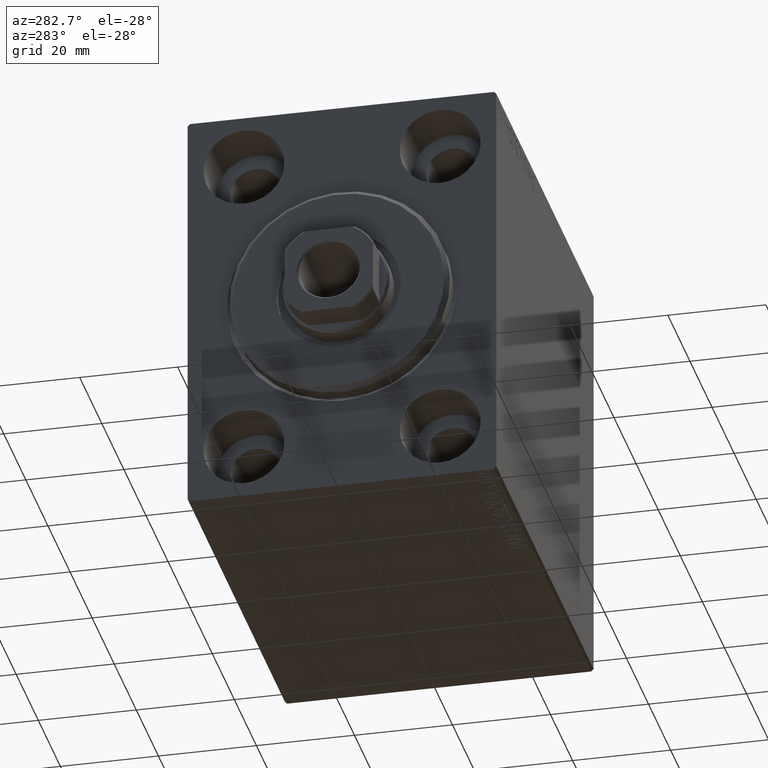
[diagram: clean part render]
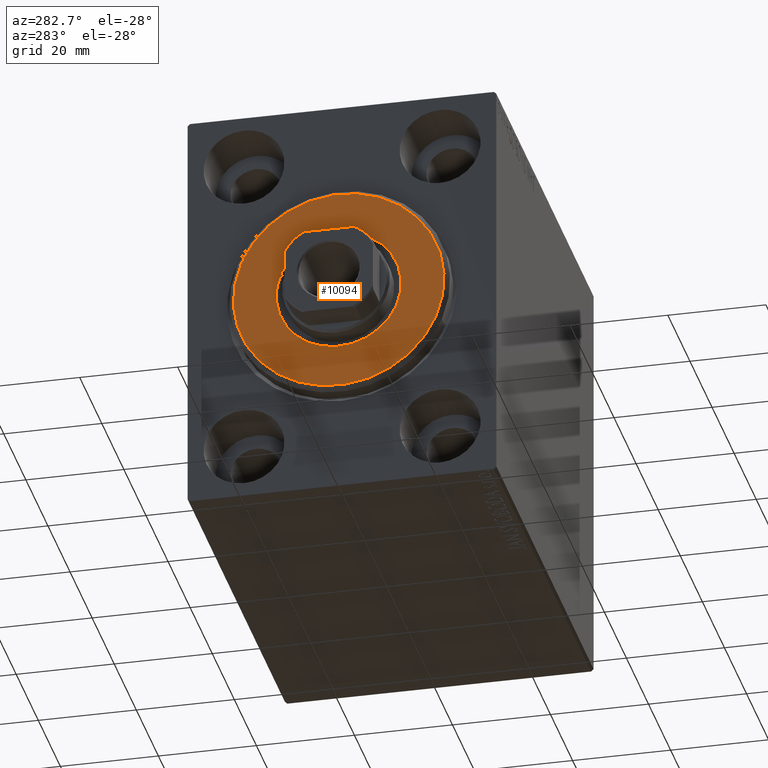
[diagram: same view with one face highlighted and labeled with its STEP entity id]
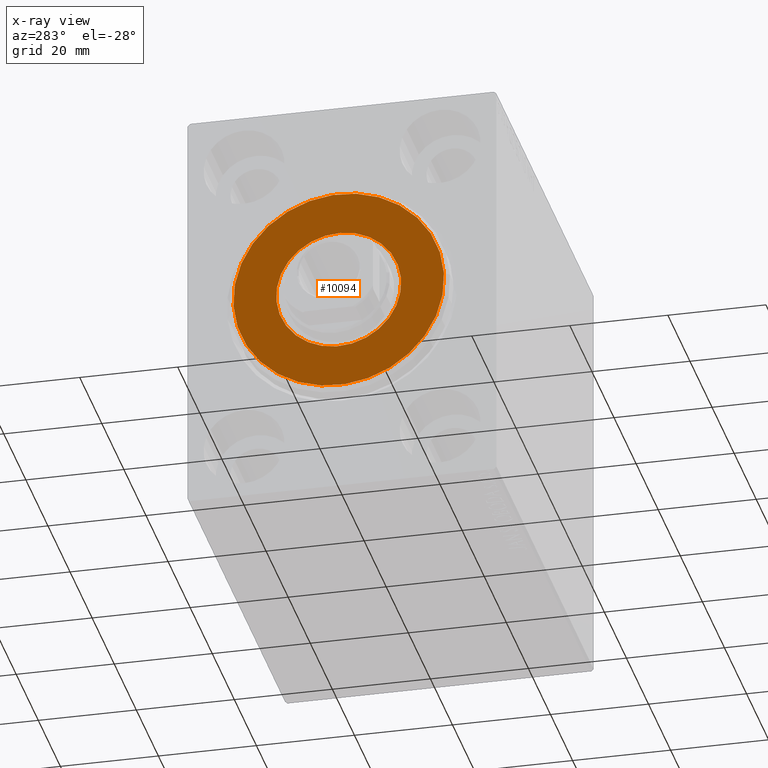
[diagram: x-ray of the same camera — body ghosted, the highlighted face saturated]
A machine part, auxiliary view. The second image highlights one B-rep face of the part: STEP entity #10094.
The next image is the same camera in x-ray: the body ghosted, the highlighted face saturated — about 0% of this face is hidden behind the body in this view.
In plain terms, the highlighted planar face has unit normal (-1, 0, 0).
Its self-contained STEP definition (entity closure, byte-faithful):
#1154 = DIRECTION ( 'NONE',  ( 0.000000000000000000, 0.000000000000000000, -1.000000000000000000 ) ) ;
#2904 = CIRCLE ( 'NONE', #31323, 21.50000000000000355 ) ;
#4001 = DIRECTION ( 'NONE',  ( 0.000000000000000000, 0.000000000000000000, -1.000000000000000000 ) ) ;
#4211 = PLANE ( 'NONE',  #8988 ) ;
#4222 = DIRECTION ( 'NONE',  ( 1.000000000000000000, -0.000000000000000000, 0.000000000000000000 ) ) ;
#4445 = CIRCLE ( 'NONE', #27894, 12.75000000000000000 ) ;
#5246 = EDGE_LOOP ( 'NONE', ( #11831, #33404 ) ) ;
#7316 = DIRECTION ( 'NONE',  ( 0.000000000000000000, 0.000000000000000000, -1.000000000000000000 ) ) ;
#8988 = AXIS2_PLACEMENT_3D ( 'NONE', #10655, #31569, #7316 ) ;
#10094 = ADVANCED_FACE ( 'NONE', ( #11545, #38462 ), #4211, .T. ) ;
#10655 = CARTESIAN_POINT ( 'NONE',  ( 3.000000000000000000, 0.000000000000000000, 0.000000000000000000 ) ) ;
#11162 = DIRECTION ( 'NONE',  ( -1.000000000000000000, 0.000000000000000000, -0.000000000000000000 ) ) ;
#11545 = FACE_OUTER_BOUND ( 'NONE', #38253, .T. ) ;
#11831 = ORIENTED_EDGE ( 'NONE', *, *, #43912, .T. ) ;
#19192 = CARTESIAN_POINT ( 'NONE',  ( 3.000000000000000000, 0.000000000000000000, 21.50000000000000355 ) ) ;
#20260 = DIRECTION ( 'NONE',  ( -1.000000000000000000, 0.000000000000000000, -0.000000000000000000 ) ) ;
#21794 = VERTEX_POINT ( 'NONE', #19192 ) ;
#21795 = ORIENTED_EDGE ( 'NONE', *, *, #41110, .T. ) ;
#23067 = CARTESIAN_POINT ( 'NONE',  ( 3.000000000000000000, 2.694222958124177598E-15, -21.50000000000000355 ) ) ;
#23412 = AXIS2_PLACEMENT_3D ( 'NONE', #43034, #33021, #42372 ) ;
#24043 = CARTESIAN_POINT ( 'NONE',  ( 3.000000000000000000, 0.000000000000000000, 12.75000000000000000 ) ) ;
#24044 = VERTEX_POINT ( 'NONE', #24043 ) ;
#25783 = EDGE_CURVE ( 'NONE', #35342, #21794, #2904, .T. ) ;
#27894 = AXIS2_PLACEMENT_3D ( 'NONE', #41141, #20260, #30913 ) ;
#30499 = AXIS2_PLACEMENT_3D ( 'NONE', #41643, #11162, #1154 ) ;
#30913 = DIRECTION ( 'NONE',  ( 0.000000000000000000, 0.000000000000000000, -1.000000000000000000 ) ) ;
#31323 = AXIS2_PLACEMENT_3D ( 'NONE', #33821, #4222, #4001 ) ;
#31569 = DIRECTION ( 'NONE',  ( 1.000000000000000000, -0.000000000000000000, 0.000000000000000000 ) ) ;
#31966 = CIRCLE ( 'NONE', #23412, 21.50000000000000355 ) ;
#33021 = DIRECTION ( 'NONE',  ( 1.000000000000000000, -0.000000000000000000, 0.000000000000000000 ) ) ;
#33404 = ORIENTED_EDGE ( 'NONE', *, *, #36999, .T. ) ;
#33821 = CARTESIAN_POINT ( 'NONE',  ( 3.000000000000000000, 0.000000000000000000, 0.000000000000000000 ) ) ;
#35342 = VERTEX_POINT ( 'NONE', #23067 ) ;
#36999 = EDGE_CURVE ( 'NONE', #39435, #24044, #4445, .T. ) ;
#38253 = EDGE_LOOP ( 'NONE', ( #21795, #42212 ) ) ;
#38462 = FACE_BOUND ( 'NONE', #5246, .T. ) ;
#39006 = CIRCLE ( 'NONE', #30499, 12.75000000000000000 ) ;
#39024 = CARTESIAN_POINT ( 'NONE',  ( 3.000000000000000000, 1.561424668912874914E-15, -12.75000000000000000 ) ) ;
#39435 = VERTEX_POINT ( 'NONE', #39024 ) ;
#41110 = EDGE_CURVE ( 'NONE', #21794, #35342, #31966, .T. ) ;
#41141 = CARTESIAN_POINT ( 'NONE',  ( 3.000000000000000000, 0.000000000000000000, 0.000000000000000000 ) ) ;
#41643 = CARTESIAN_POINT ( 'NONE',  ( 3.000000000000000000, 0.000000000000000000, 0.000000000000000000 ) ) ;
#42212 = ORIENTED_EDGE ( 'NONE', *, *, #25783, .T. ) ;
#42372 = DIRECTION ( 'NONE',  ( 0.000000000000000000, 0.000000000000000000, -1.000000000000000000 ) ) ;
#43034 = CARTESIAN_POINT ( 'NONE',  ( 3.000000000000000000, 0.000000000000000000, 0.000000000000000000 ) ) ;
#43912 = EDGE_CURVE ( 'NONE', #24044, #39435, #39006, .T. ) ;